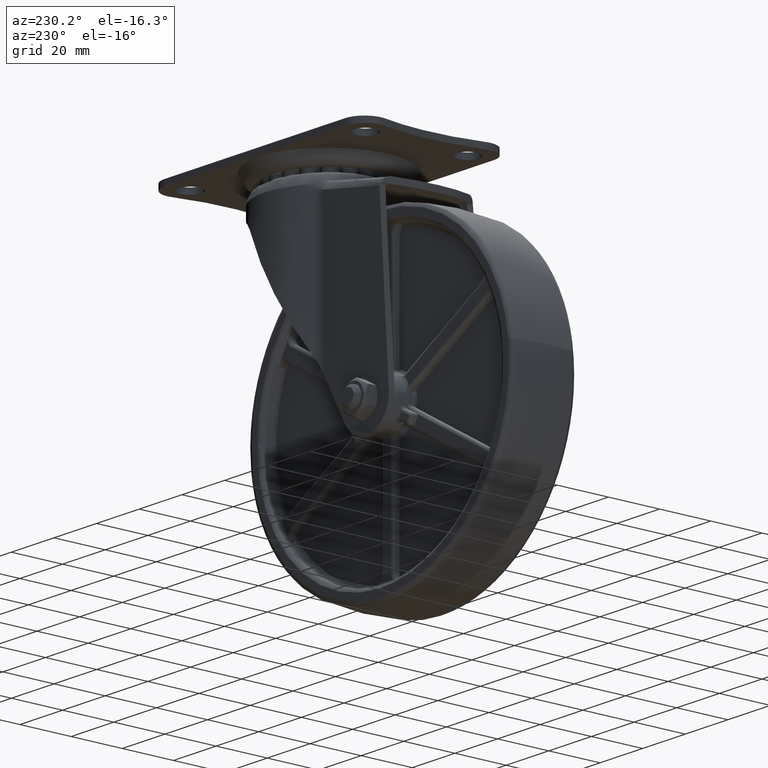
[diagram: clean part render]
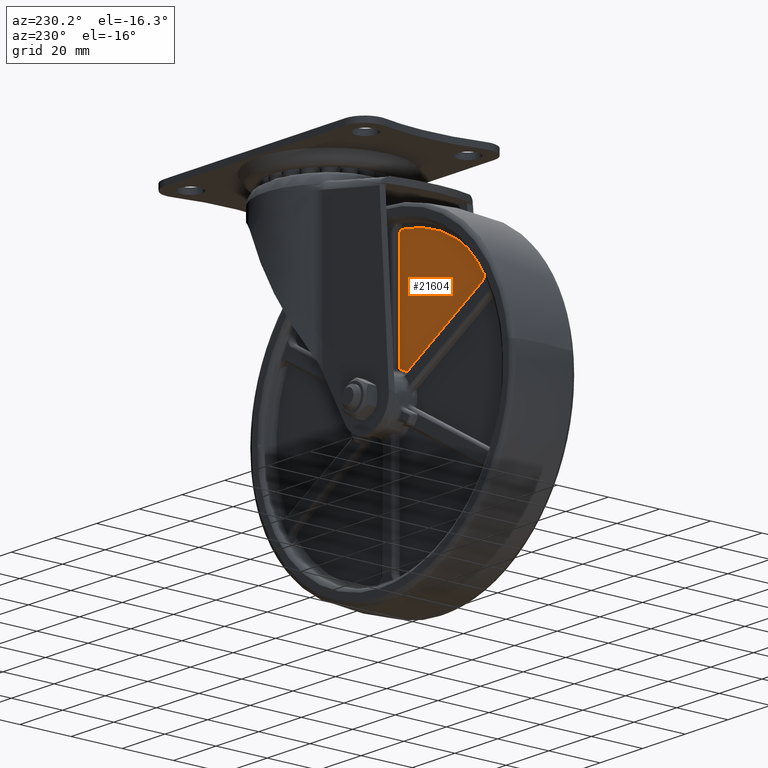
[diagram: same view with one face highlighted and labeled with its STEP entity id]
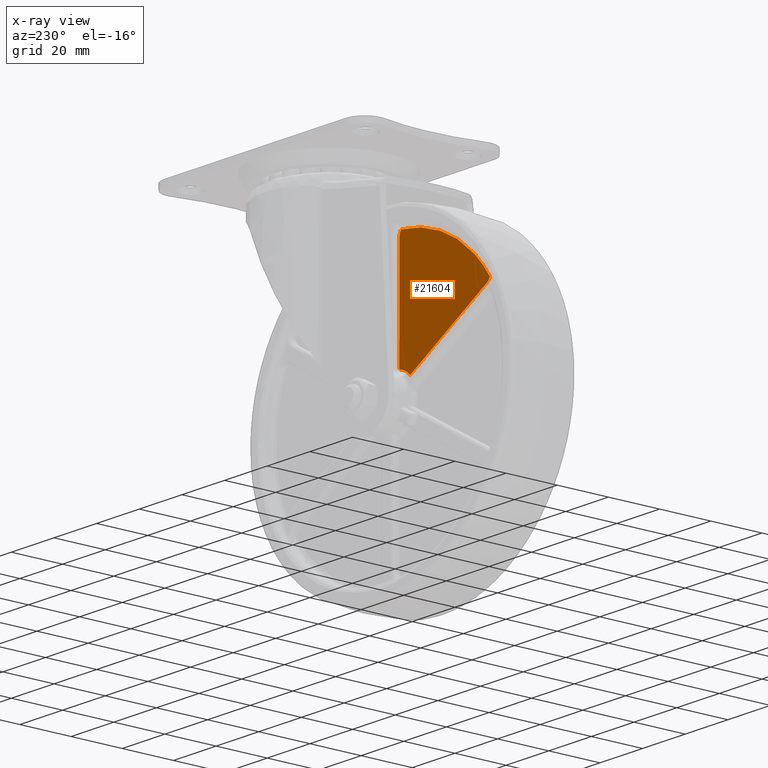
[diagram: x-ray of the same camera — body ghosted, the highlighted face saturated]
A machine part, auxiliary view. The second image highlights one B-rep face of the part: STEP entity #21604.
The next image is the same camera in x-ray: the body ghosted, the highlighted face saturated — about 0% of this face is hidden behind the body in this view.
In plain terms, the highlighted face is a freeform B-spline surface patch.
Its self-contained STEP definition (entity closure, byte-faithful):
#18653=CARTESIAN_POINT('',(-3.754210223986675,7.500000000000000,54.613724710466002));
#18654=VERTEX_POINT('',#18653);
#18686=CARTESIAN_POINT('',(-3.0,7.500000000000000,52.276023119174297));
#18687=VERTEX_POINT('',#18686);
#18693=CARTESIAN_POINT('',(-3.0,7.500000000000000,52.276023119174297));
#18694=CARTESIAN_POINT('',(-3.0,7.500000000000000,53.566538943428817));
#18695=CARTESIAN_POINT('',(-3.754210223986713,7.500000000000000,54.613724710465974));
#18703=(BOUNDED_CURVE()B_SPLINE_CURVE(2,(#18693,#18694,#18695),.UNSPECIFIED.,.F.,.U.)CURVE()GEOMETRIC_REPRESENTATION_ITEM()QUASI_UNIFORM_CURVE()RATIONAL_B_SPLINE_CURVE((1.0,0.951695183344783,1.0))REPRESENTATION_ITEM(''));
#18704=EDGE_CURVE('',#18687,#18654,#18703,.T.);
#18742=CARTESIAN_POINT('',(-3.0,7.500000000000000,11.029539681949579));
#18743=VERTEX_POINT('',#18742);
#18753=CARTESIAN_POINT('',(-3.0,7.500000000000000,11.029539681949579));
#18754=CARTESIAN_POINT('',(-3.0,7.500000000000000,52.276023119174297));
#18755=QUASI_UNIFORM_CURVE('',1,(#18753,#18754),.UNSPECIFIED.,.F.,.U.);
#18756=EDGE_CURVE('',#18743,#18687,#18755,.T.);
#18792=CARTESIAN_POINT('',(-45.419767882560102,7.500000000000000,30.558103780352749));
#18793=VERTEX_POINT('',#18792);
#18822=CARTESIAN_POINT('',(-43.772364030027603,7.500000000000000,28.736087770940500));
#18823=VERTEX_POINT('',#18822);
#18824=CARTESIAN_POINT('',(-45.419767882560123,7.500000000000000,30.558103780352742));
#18825=CARTESIAN_POINT('',(-44.889983517817804,7.500000000000000,29.381345683067746));
#18826=CARTESIAN_POINT('',(-43.772364030027603,7.500000000000000,28.736087770940500));
#18834=(BOUNDED_CURVE()B_SPLINE_CURVE(2,(#18824,#18825,#18826),.UNSPECIFIED.,.F.,.U.)CURVE()GEOMETRIC_REPRESENTATION_ITEM()QUASI_UNIFORM_CURVE()RATIONAL_B_SPLINE_CURVE((1.0,0.951695183344785,1.0))REPRESENTATION_ITEM(''));
#18835=EDGE_CURVE('',#18793,#18823,#18834,.T.);
#18920=CARTESIAN_POINT('',(-8.051861556616860,7.500000000000000,8.112846052328111));
#18921=VERTEX_POINT('',#18920);
#18934=CARTESIAN_POINT('',(-43.772364030027603,7.500000000000000,28.736087770940500));
#18935=CARTESIAN_POINT('',(-8.051861556616860,7.500000000000000,8.112846052328111));
#18936=QUASI_UNIFORM_CURVE('',1,(#18934,#18935),.UNSPECIFIED.,.F.,.U.);
#18937=EDGE_CURVE('',#18823,#18921,#18936,.T.);
#21563=CARTESIAN_POINT('',(-3.754210223986656,7.500000000000000,54.613724710465988));
#21564=CARTESIAN_POINT('',(-30.470923205188782,7.500000000000000,52.777187144916553));
#21565=CARTESIAN_POINT('',(-45.419767882560109,7.500000000000000,30.558103780352770));
#21573=(BOUNDED_CURVE()B_SPLINE_CURVE(2,(#21563,#21564,#21565),.UNSPECIFIED.,.F.,.U.)CURVE()GEOMETRIC_REPRESENTATION_ITEM()QUASI_UNIFORM_CURVE()RATIONAL_B_SPLINE_CURVE((1.0,0.898276147253032,1.0))REPRESENTATION_ITEM(''));
#21574=EDGE_CURVE('',#18654,#18793,#21573,.T.);
#21579=CARTESIAN_POINT('',(-47.538636798901948,7.500000000000000,56.936442636278301));
#21580=CARTESIAN_POINT('',(-47.538636798901948,7.500000000000000,5.790126047764543));
#21581=CARTESIAN_POINT('',(-0.881131462920422,7.500000000000000,56.936442636278301));
#21582=CARTESIAN_POINT('',(-0.881131462920422,7.500000000000000,5.790126047764543));
#21583=B_SPLINE_SURFACE_WITH_KNOTS('',1,1,((#21579,#21581),(#21580,#21582)),.UNSPECIFIED.,.F.,.F.,.U.,(2,2),(2,2),(0.0,51.146316588513763),(0.0,46.657505335981533),.UNSPECIFIED.);
#21584=ORIENTED_EDGE('',*,*,#18704,.F.);
#21585=ORIENTED_EDGE('',*,*,#18756,.F.);
#21586=CARTESIAN_POINT('',(-2.999999999999999,7.500000000000000,11.029539681949579));
#21587=CARTESIAN_POINT('',(-5.910802670047843,7.500000000000000,10.237810538036662));
#21588=CARTESIAN_POINT('',(-8.051861556616863,7.500000000000000,8.112846052328120));
#21596=(BOUNDED_CURVE()B_SPLINE_CURVE(2,(#21586,#21587,#21588),.UNSPECIFIED.,.F.,.U.)CURVE()GEOMETRIC_REPRESENTATION_ITEM()QUASI_UNIFORM_CURVE()RATIONAL_B_SPLINE_CURVE((1.0,0.966895390359471,1.0))REPRESENTATION_ITEM(''));
#21597=EDGE_CURVE('',#18743,#18921,#21596,.T.);
#21598=ORIENTED_EDGE('',*,*,#21597,.T.);
#21599=ORIENTED_EDGE('',*,*,#18937,.F.);
#21600=ORIENTED_EDGE('',*,*,#18835,.F.);
#21601=ORIENTED_EDGE('',*,*,#21574,.F.);
#21602=EDGE_LOOP('',(#21584,#21585,#21598,#21599,#21600,#21601));
#21603=FACE_OUTER_BOUND('',#21602,.T.);
#21604=ADVANCED_FACE('',(#21603),#21583,.F.);